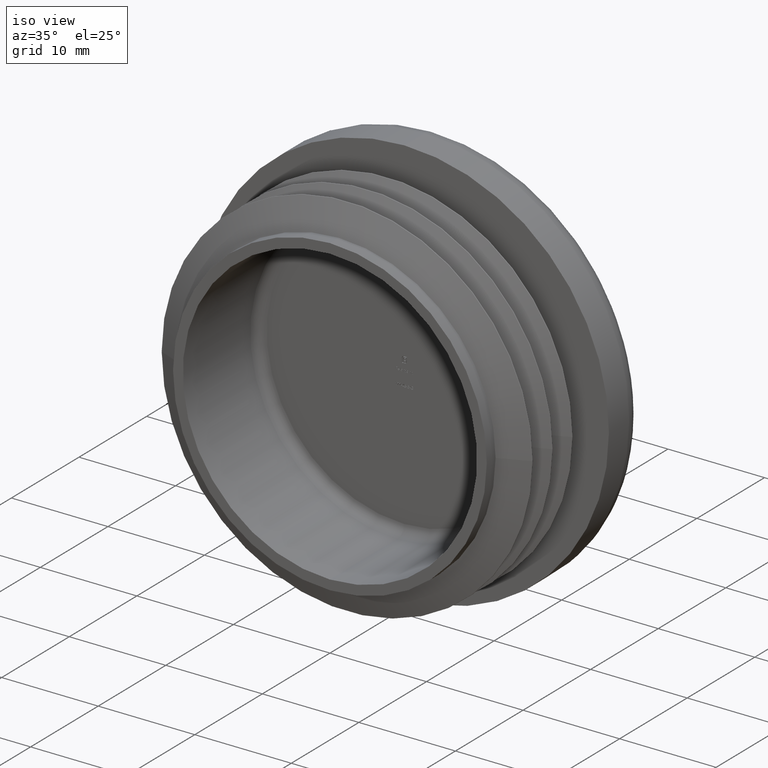
[diagram: clean part render]
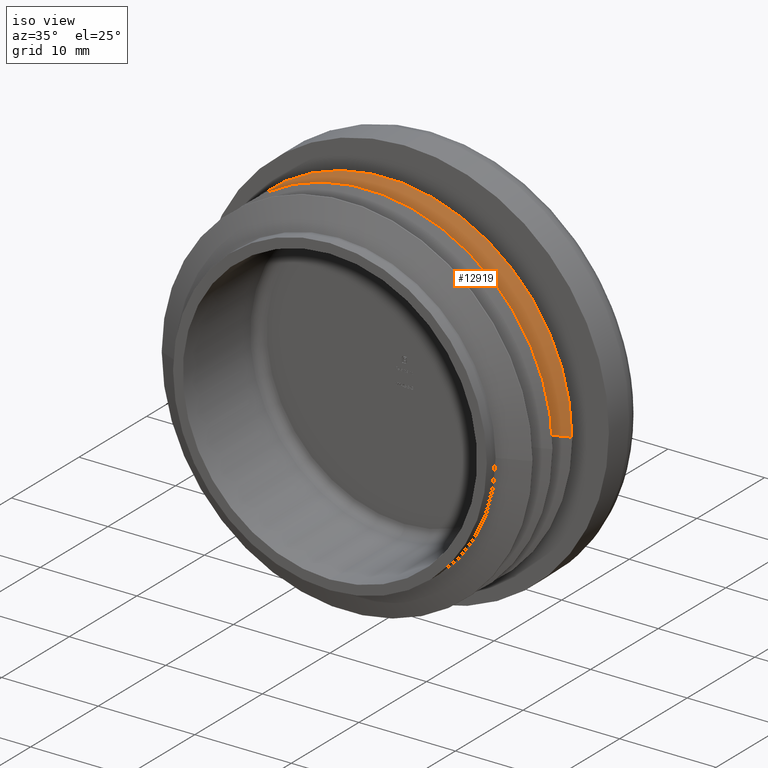
[diagram: same view with one face highlighted and labeled with its STEP entity id]
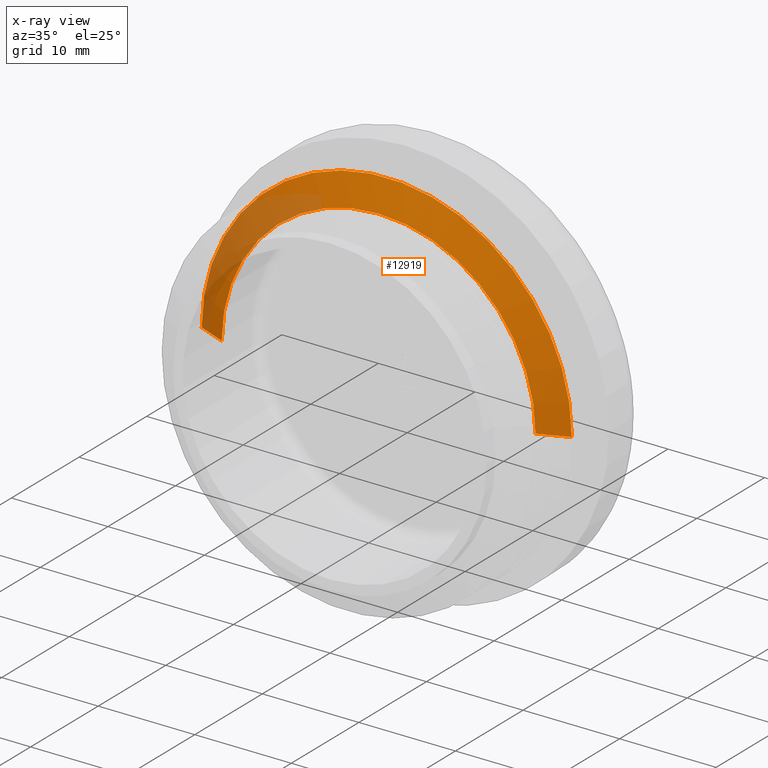
[diagram: x-ray of the same camera — body ghosted, the highlighted face saturated]
A machine part, iso view. The second image highlights one B-rep face of the part: STEP entity #12919.
The next image is the same camera in x-ray: the body ghosted, the highlighted face saturated — about 21% of this face is hidden behind the body in this view.
In plain terms, the highlighted conical surface has half-angle 67.59 deg.
Its self-contained STEP definition (entity closure, byte-faithful):
#286 = VERTEX_POINT ( 'NONE', #6183 ) ;
#788 = VERTEX_POINT ( 'NONE', #11502 ) ;
#835 = FACE_OUTER_BOUND ( 'NONE', #12041, .T. ) ;
#870 = VERTEX_POINT ( 'NONE', #2276 ) ;
#1222 = LINE ( 'NONE', #2408, #7381 ) ;
#1374 = ORIENTED_EDGE ( 'NONE', *, *, #7619, .T. ) ;
#1417 = CARTESIAN_POINT ( 'NONE',  ( 19.16906198721965282, 8.403776189650805861, 2.347533040530586219E-15 ) ) ;
#1903 = CARTESIAN_POINT ( 'NONE',  ( -19.16906198721983046, 8.403776189650402628, 0.000000000000000000 ) ) ;
#2007 = CARTESIAN_POINT ( 'NONE',  ( -7.541599691901369996E-14, 7.200000000000192024, 0.000000000000000000 ) ) ;
#2133 = EDGE_CURVE ( 'NONE', #286, #2703, #2226, .T. ) ;
#2226 = LINE ( 'NONE', #7701, #5408 ) ;
#2276 = CARTESIAN_POINT ( 'NONE',  ( -16.25000000000007816, 7.200000000000022382, 0.000000000000000000 ) ) ;
#2408 = CARTESIAN_POINT ( 'NONE',  ( -16.25000000000015277, 7.200000000000053468, 0.000000000000000000 ) ) ;
#2437 = DIRECTION ( 'NONE',  ( -1.047444401652940164E-14, 1.000000000000000000, 0.000000000000000000 ) ) ;
#2584 = ORIENTED_EDGE ( 'NONE', *, *, #9149, .T. ) ;
#2703 = VERTEX_POINT ( 'NONE', #1417 ) ;
#2814 = AXIS2_PLACEMENT_3D ( 'NONE', #5726, #2437, #3213 ) ;
#2910 = VERTEX_POINT ( 'NONE', #1903 ) ;
#3213 = DIRECTION ( 'NONE',  ( -1.000000000000000000, -1.046171696281392412E-14, 0.000000000000000000 ) ) ;
#4343 = DIRECTION ( 'NONE',  ( 1.000000000000000000, 1.049753625646736379E-14, 0.000000000000000000 ) ) ;
#4645 = DIRECTION ( 'NONE',  ( 0.9244762069923481151, 0.3812397443932636909, 1.132156827781070026E-16 ) ) ;
#4671 = CIRCLE ( 'NONE', #9016, 16.25000000000000000 ) ;
#5408 = VECTOR ( 'NONE', #4645, 1000.000000000000227 ) ;
#5726 = CARTESIAN_POINT ( 'NONE',  ( -7.541599691901402812E-14, 7.200000000000223999, 0.000000000000000000 ) ) ;
#6183 = CARTESIAN_POINT ( 'NONE',  ( 16.24999999999992539, 7.200000000000362554, 2.168792044572518161E-15 ) ) ;
#6397 = DIRECTION ( 'NONE',  ( -1.000000000000000000, -1.046171696281397461E-14, 0.000000000000000000 ) ) ;
#6551 = CARTESIAN_POINT ( 'NONE',  ( -8.802488322593802865E-14, 8.403776189650603357, 0.000000000000000000 ) ) ;
#6917 = AXIS2_PLACEMENT_3D ( 'NONE', #6551, #11898, #4343 ) ;
#6999 = AXIS2_PLACEMENT_3D ( 'NONE', #10442, #11499, #8490 ) ;
#7381 = VECTOR ( 'NONE', #10659, 999.9999999999998863 ) ;
#7619 = EDGE_CURVE ( 'NONE', #788, #286, #12936, .T. ) ;
#7666 = ORIENTED_EDGE ( 'NONE', *, *, #9909, .F. ) ;
#7701 = CARTESIAN_POINT ( 'NONE',  ( 16.25000000000000000, 7.200000000000393641, 1.990051048614458385E-15 ) ) ;
#7752 = CIRCLE ( 'NONE', #6917, 19.16906198721974519 ) ;
#8490 = DIRECTION ( 'NONE',  ( -1.000000000000000000, -1.046171696281397461E-14, 0.000000000000000000 ) ) ;
#8559 = ORIENTED_EDGE ( 'NONE', *, *, #2133, .T. ) ;
#9016 = AXIS2_PLACEMENT_3D ( 'NONE', #2007, #13768, #6397 ) ;
#9149 = EDGE_CURVE ( 'NONE', #2703, #2910, #7752, .T. ) ;
#9826 = CONICAL_SURFACE ( 'NONE', #2814, 16.25000000000007816, 1.179659376938436477 ) ;
#9909 = EDGE_CURVE ( 'NONE', #870, #2910, #1222, .T. ) ;
#10442 = CARTESIAN_POINT ( 'NONE',  ( -7.541599691901369996E-14, 7.200000000000192024, 0.000000000000000000 ) ) ;
#10659 = DIRECTION ( 'NONE',  ( -0.9244762069923562198, 0.3812397443932444285, 0.000000000000000000 ) ) ;
#11499 = DIRECTION ( 'NONE',  ( -1.047444401652940164E-14, 1.000000000000000000, 0.000000000000000000 ) ) ;
#11502 = CARTESIAN_POINT ( 'NONE',  ( 1.990051048612672798E-15, 7.200000000000192024, 16.25000000000000000 ) ) ;
#11898 = DIRECTION ( 'NONE',  ( 1.047444401652940164E-14, -1.000000000000000000, -0.000000000000000000 ) ) ;
#12041 = EDGE_LOOP ( 'NONE', ( #1374, #8559, #2584, #7666, #13606 ) ) ;
#12919 = ADVANCED_FACE ( 'NONE', ( #835 ), #9826, .T. ) ;
#12936 = CIRCLE ( 'NONE', #6999, 16.25000000000000000 ) ;
#13080 = EDGE_CURVE ( 'NONE', #870, #788, #4671, .T. ) ;
#13606 = ORIENTED_EDGE ( 'NONE', *, *, #13080, .T. ) ;
#13768 = DIRECTION ( 'NONE',  ( -1.047444401652940164E-14, 1.000000000000000000, 0.000000000000000000 ) ) ;